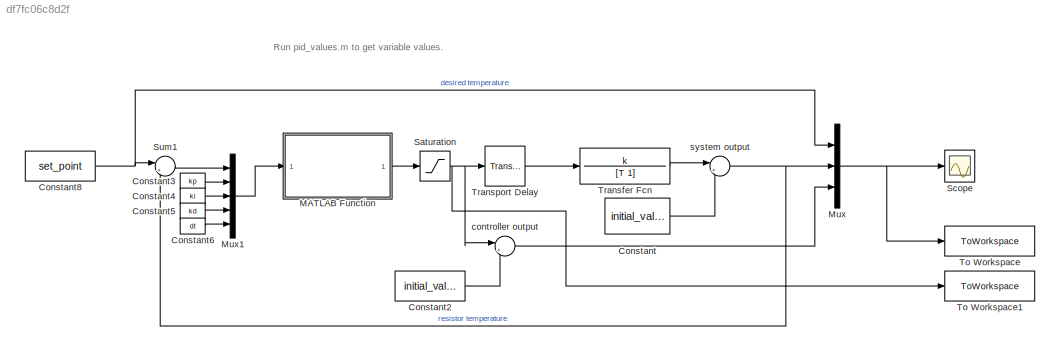
MODEL slx_df7fc06c8d2f
KIND model
CONFIG AbsTol = auto
CONFIG EnableMultiTasking = off
CONFIG FixedStep = 1
CONFIG MaxStep = auto
CONFIG MinStep = auto
CONFIG RelTol = 1e-3
CONFIG SampleTimeConstraint = Unconstrained
CONFIG SolverName = FixedStepAuto
CONFIG StartTime = 0.0
CONFIG StopTime = 600
BLOCK [Constant] Constant
  Value = initial_value
BLOCK [Constant] Constant2
  Value = initial_value
BLOCK [Constant] Constant3
  Value = kp
BLOCK [Constant] Constant4
  Value = ki
BLOCK [Constant] Constant5
  Value = kd
BLOCK [Constant] Constant6
  Value = dt
BLOCK [Constant] Constant8
  Value = set_point
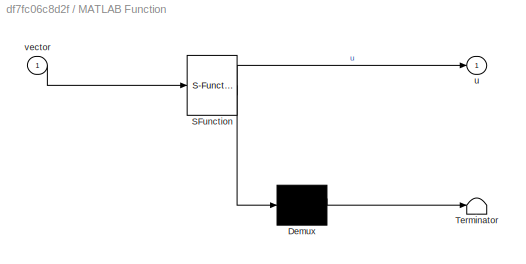
BLOCK [SubSystem] MATLAB Function
  ErrorFcn = Stateflow.Translate.translate
  PermitHierarchicalResolution = ExplicitOnly
  SFBlockType = MATLAB Function
  TreatAsAtomicUnit = on
BLOCK [Demux] MATLAB Function/ Demux 
  Outputs = 1
BLOCK [S-Function] MATLAB Function/ SFunction 
  EnableBusSupport = on
  FunctionName = sf_sfun
  PortCounts = [1 2]
  SFcnIsStateOwnerBlock = off
  SFunctionDeploymentMode = off
  Tag = Stateflow S-Function 2
BLOCK [Terminator] MATLAB Function/ Terminator 
BLOCK [Outport] MATLAB Function/u
BLOCK [Inport] MATLAB Function/vector
BLOCK [Mux] Mux
  DisplayOption = bar
  Inputs = 3
BLOCK [Mux] Mux1
  DisplayOption = bar
  Inputs = 5
BLOCK [Saturate] Saturation
  LowerLimit = 0
  UpperLimit = 1
BLOCK [Scope] Scope
  Floating = off
  NumInputPorts = 1
  ScopeSpecificationString = Simulink.scopes.TimeScopeBlockCfg('CurrentConfiguration', extmgr.ConfigurationSet(extmgr.Configuration('Core','General UI',true),extmgr.Configuration('Core','Source UI',true),extmgr.Configuration('Sources','WiredSimulink',true),extmgr.Configuration('Visuals','Time Domain',true,'SerializedDisplays',{struct('MinYLimReal','18.03181','MaxYLimReal','27.7137','YLabelReal','','MinYLimMag','18.03181','Max...<+1652ch>
BLOCK [Sum] Sum1
  Inputs = |+-
BLOCK [ToWorkspace] To Workspace
  FixptAsFi = on
  MaxDataPoints = inf
  SampleTime = -1
  SaveFormat = Timeseries
  VariableName = simout
BLOCK [ToWorkspace] To Workspace1
  FixptAsFi = on
  MaxDataPoints = inf
  SampleTime = -1
  SaveFormat = Timeseries
  VariableName = u
BLOCK [TransferFcn] Transfer Fcn
  Denominator = [T 1]
  Numerator = k
BLOCK [TransportDelay] Transport Delay
  DelayTime = delay
BLOCK [Sum] controller output
  Inputs = |++
BLOCK [Sum] system output
  Inputs = |++
ANNOTATION (root): Run pid_values.m to get variable values.
LINE Constant2:1 -> controller output:2
LINE Constant3:1 -> Mux1:2
LINE Constant4:1 -> Mux1:3
LINE Constant5:1 -> Mux1:4
LINE Constant6:1 -> Mux1:5
NET Constant8:1 -> Mux:1, Sum1:1
LINE Constant:1 -> system output:2
LINE MATLAB Function:1 -> Saturation:1
LINE Mux1:1 -> MATLAB Function:1
NET Mux:1 -> Scope:1, To Workspace:1
NET Saturation:1 -> To Workspace1:1, Transport Delay:1, controller output:1
LINE Sum1:1 -> Mux1:1
LINE Transfer Fcn:1 -> system output:1
LINE Transport Delay:1 -> Transfer Fcn:1
LINE controller output:1 -> Mux:3
NET system output:1 -> Mux:2, Sum1:2
note: NET lines group one-source signal fan-out (src -> all destinations, sorted); 1:1 wires keep LINE
CHART MATLAB Function states=1 transitions=1
  STATE_LABEL 'eML_blk_kernel()'
  STATE_LABEL 'SCRIPT:\nfunction u = pid_controller(vector)\n%separate data from passed vector:\ne = vector(1);\nkp = vector(2);\nki = vector(3);\nkd = vector(4);\ndt = vector(5);\n\n%static value\npersistent previous_error;\nif isempty(previous_error)\n    previous_error = 0;\nend\n\npersistent previous_integral;\nif isempty(previous_integral)\n    previous_integral = 0;\nend\n\n%controller equations:\n%proprotional part\nP = kp*e;\n...<+276ch>'
CHART  states=0 transitions=0
